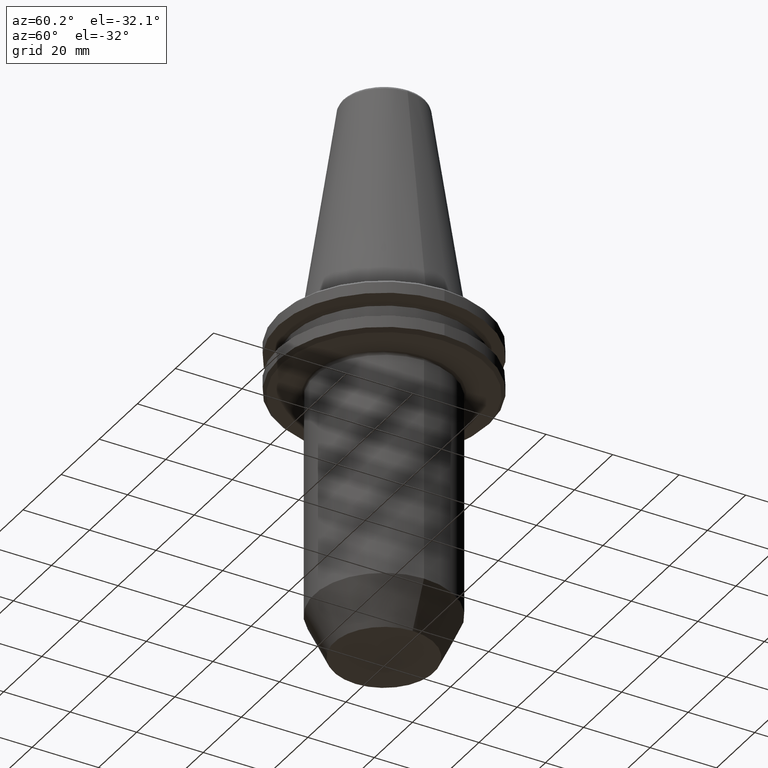
[diagram: clean part render]
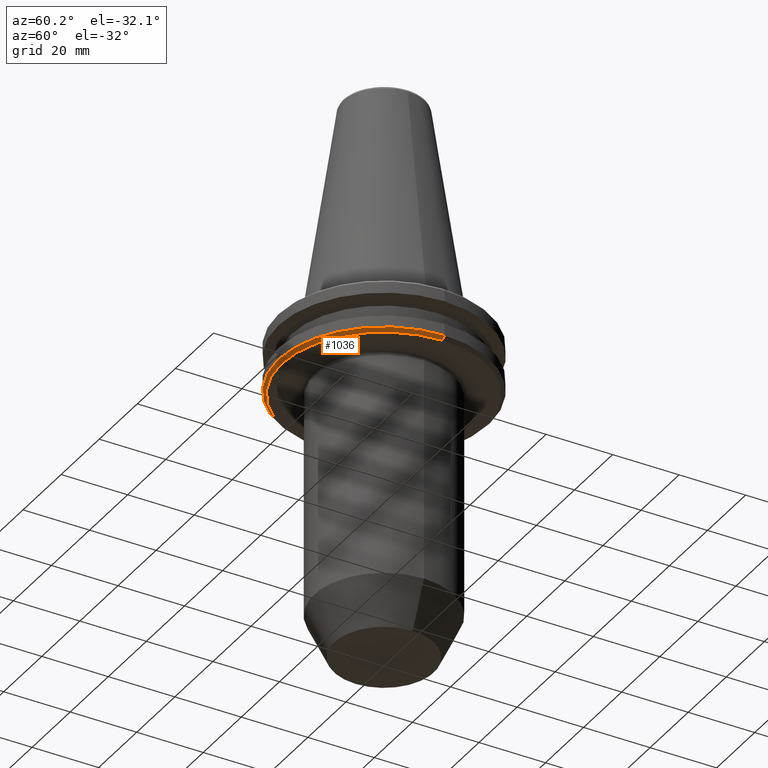
[diagram: same view with one face highlighted and labeled with its STEP entity id]
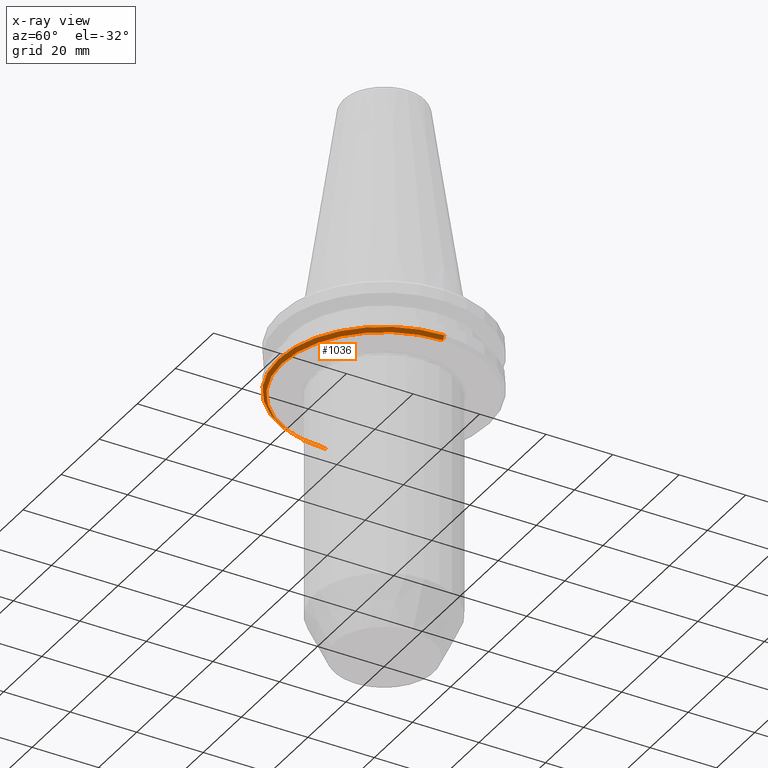
[diagram: x-ray of the same camera — body ghosted, the highlighted face saturated]
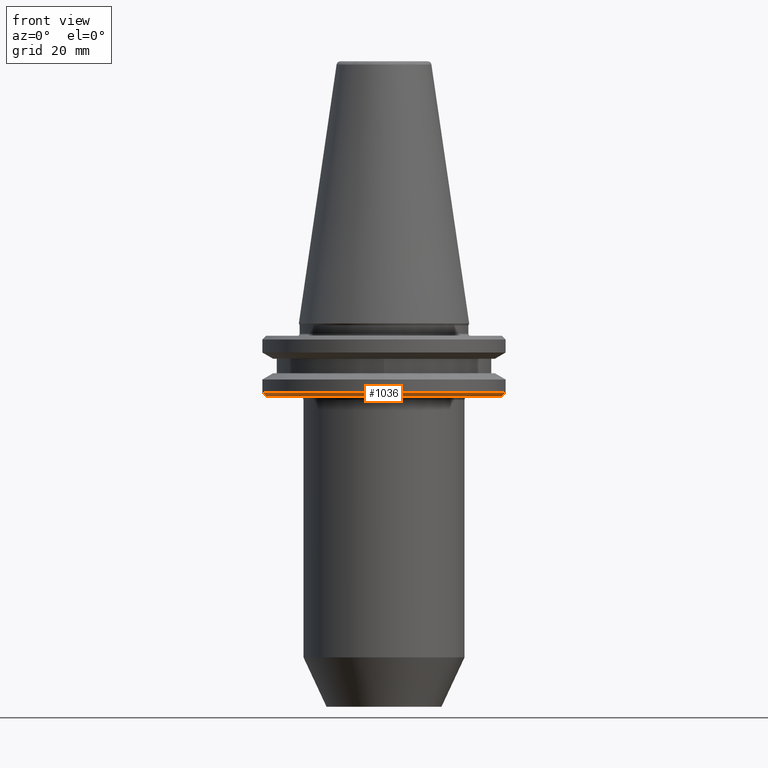
[diagram: same view with one face highlighted and labeled with its STEP entity id]
A machine part, auxiliary view. The second image highlights one B-rep face of the part: STEP entity #1036.
The next image is the same camera in x-ray: the body ghosted, the highlighted face saturated — about 1% of this face is hidden behind the body in this view.
A second angle (front view) of the same face is appended — the face is thin or edge-on in the first view.
In plain terms, the highlighted conical surface has half-angle 45 deg.
Its self-contained STEP definition (entity closure, byte-faithful):
#63 = CARTESIAN_POINT ( 'NONE',  ( -31.63284271249314400, 3.873905957578640200E-015, -18.21715728750686500 ) ) ;
#70 = CARTESIAN_POINT ( 'NONE',  ( 31.74999999784801500, 0.0000000000000000000, -18.10000000215199000 ) ) ;
#120 = CARTESIAN_POINT ( 'NONE',  ( 0.0000000000000000000, 0.0000000000000000000, -18.21715728750686500 ) ) ;
#122 = DIRECTION ( 'NONE',  ( 0.0000000000000000000, -0.0000000000000000000, 1.000000000000000000 ) ) ;
#123 = DIRECTION ( 'NONE',  ( 1.000000000000000000, 0.0000000000000000000, 0.0000000000000000000 ) ) ;
#209 = DIRECTION ( 'NONE',  ( 1.000000000000000000, 0.0000000000000000000, 0.0000000000000000000 ) ) ;
#211 = DIRECTION ( 'NONE',  ( -0.0000000000000000000, -0.0000000000000000000, 1.000000000000000000 ) ) ;
#213 = CARTESIAN_POINT ( 'NONE',  ( 0.0000000000000000000, 0.0000000000000000000, -19.10000000000006200 ) ) ;
#267 = VERTEX_POINT ( 'NONE', #1020 ) ;
#276 = FACE_OUTER_BOUND ( 'NONE', #1350, .T. ) ;
#315 = CARTESIAN_POINT ( 'NONE',  ( -31.74999999784801500, 3.888253587029304600E-015, -18.10000000215199000 ) ) ;
#329 = EDGE_CURVE ( 'NONE', #710, #1168, #1325, .T. ) ;
#344 = CIRCLE ( 'NONE', #607, 30.75000000000072100 ) ;
#406 = VERTEX_POINT ( 'NONE', #875 ) ;
#423 = EDGE_CURVE ( 'NONE', #406, #1168, #597, .T. ) ;
#543 = DIRECTION ( 'NONE',  ( -0.7071067811865506800, 8.659560562354971100E-017, 0.7071067811865443500 ) ) ;
#597 = LINE ( 'NONE', #874, #999 ) ;
#607 = AXIS2_PLACEMENT_3D ( 'NONE', #213, #211, #209 ) ;
#615 = ORIENTED_EDGE ( 'NONE', *, *, #423, .T. ) ;
#710 = VERTEX_POINT ( 'NONE', #315 ) ;
#856 = DIRECTION ( 'NONE',  ( 0.7071067811865506800, 0.0000000000000000000, 0.7071067811865443500 ) ) ;
#857 = CONICAL_SURFACE ( 'NONE', #983, 31.63284271249314400, 0.7853981633974528300 ) ;
#874 = CARTESIAN_POINT ( 'NONE',  ( 31.63284271249314400, 0.0000000000000000000, -18.21715728750686500 ) ) ;
#875 = CARTESIAN_POINT ( 'NONE',  ( 30.75000000000072100, 0.0000000000000000000, -19.10000000000006200 ) ) ;
#888 = DIRECTION ( 'NONE',  ( 1.000000000000000000, 0.0000000000000000000, 0.0000000000000000000 ) ) ;
#891 = DIRECTION ( 'NONE',  ( -0.0000000000000000000, -0.0000000000000000000, 1.000000000000000000 ) ) ;
#894 = CARTESIAN_POINT ( 'NONE',  ( 0.0000000000000000000, 0.0000000000000000000, -18.10000000215199000 ) ) ;
#924 = EDGE_CURVE ( 'NONE', #267, #406, #344, .T. ) ;
#926 = ORIENTED_EDGE ( 'NONE', *, *, #924, .T. ) ;
#934 = ORIENTED_EDGE ( 'NONE', *, *, #1109, .F. ) ;
#983 = AXIS2_PLACEMENT_3D ( 'NONE', #120, #122, #123 ) ;
#999 = VECTOR ( 'NONE', #856, 1000.000000000000000 ) ;
#1003 = ORIENTED_EDGE ( 'NONE', *, *, #329, .F. ) ;
#1020 = CARTESIAN_POINT ( 'NONE',  ( -30.75000000000072100, 3.827021247203795100E-015, -19.10000000000006200 ) ) ;
#1036 = ADVANCED_FACE ( 'NONE', ( #276 ), #857, .T. ) ;
#1072 = AXIS2_PLACEMENT_3D ( 'NONE', #894, #891, #888 ) ;
#1109 = EDGE_CURVE ( 'NONE', #267, #710, #1338, .T. ) ;
#1168 = VERTEX_POINT ( 'NONE', #70 ) ;
#1325 = CIRCLE ( 'NONE', #1072, 31.74999999784873600 ) ;
#1338 = LINE ( 'NONE', #63, #1339 ) ;
#1339 = VECTOR ( 'NONE', #543, 1000.000000000000000 ) ;
#1350 = EDGE_LOOP ( 'NONE', ( #934, #926, #615, #1003 ) ) ;